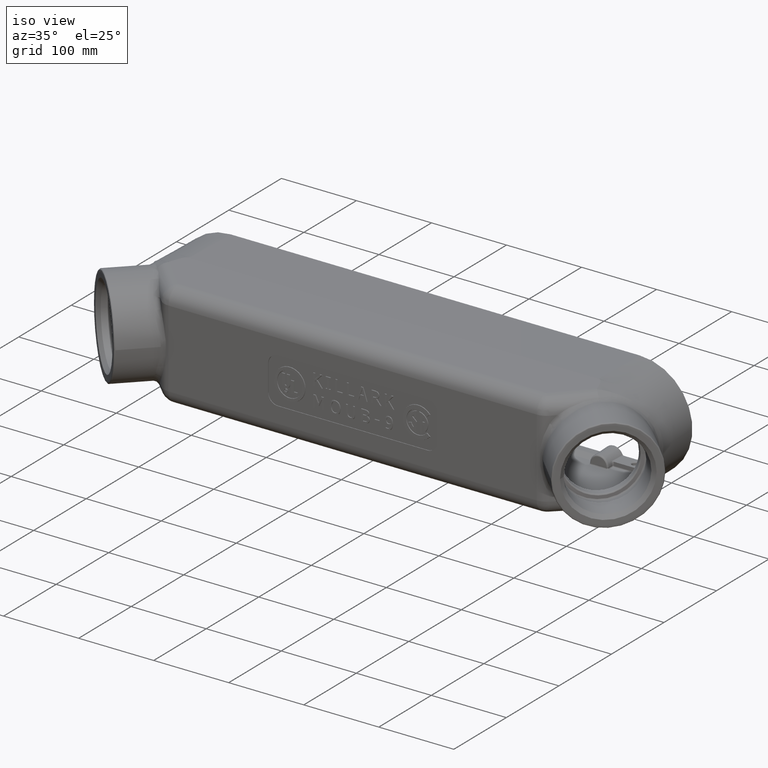
[diagram: clean part render]
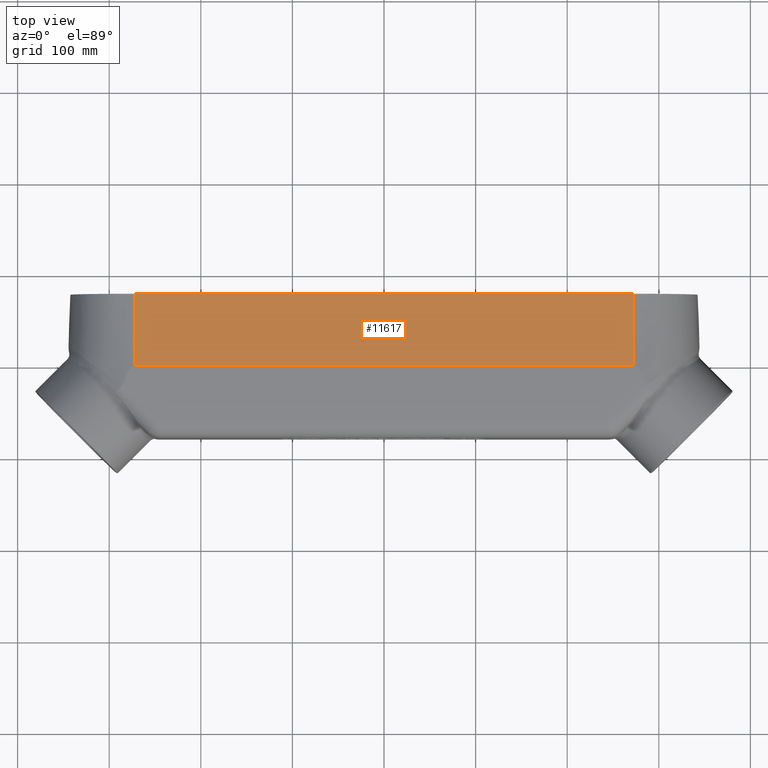
[diagram: tour spotlight — one face highlighted and labeled with its STEP entity id]
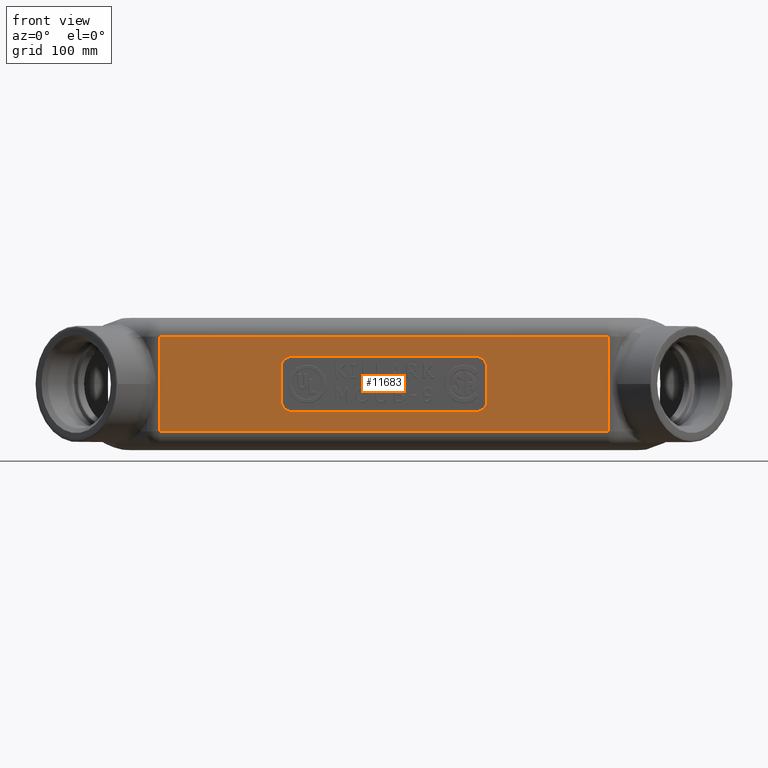
[diagram: tour spotlight — one face highlighted and labeled with its STEP entity id]
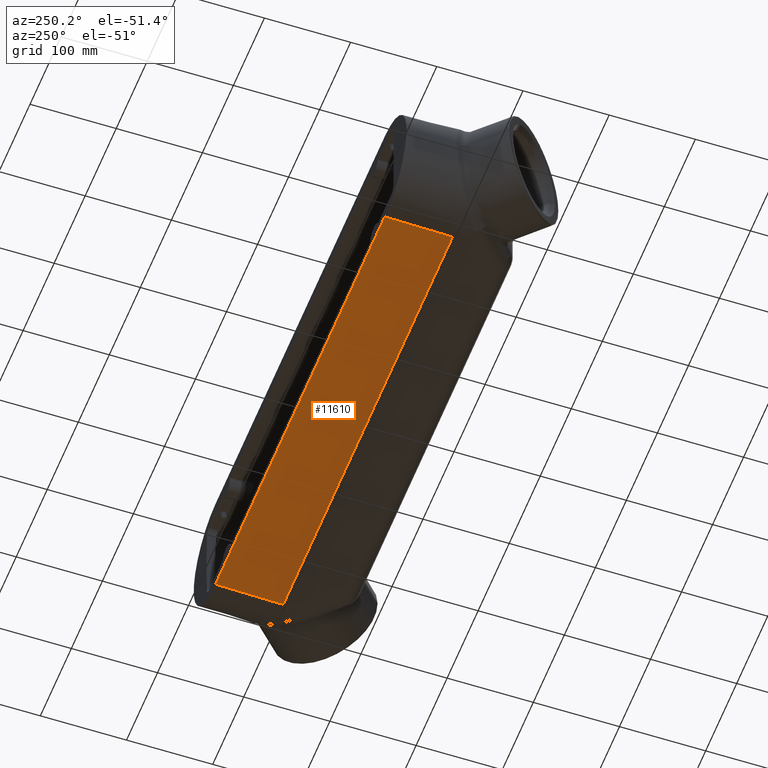
[diagram: tour spotlight — one face highlighted and labeled with its STEP entity id]
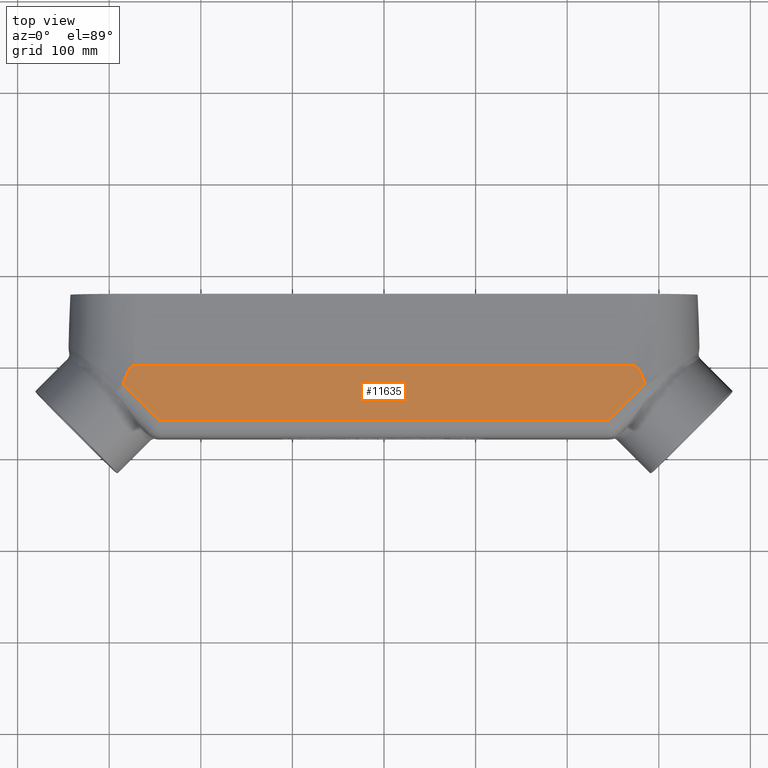
[diagram: tour spotlight — one face highlighted and labeled with its STEP entity id]
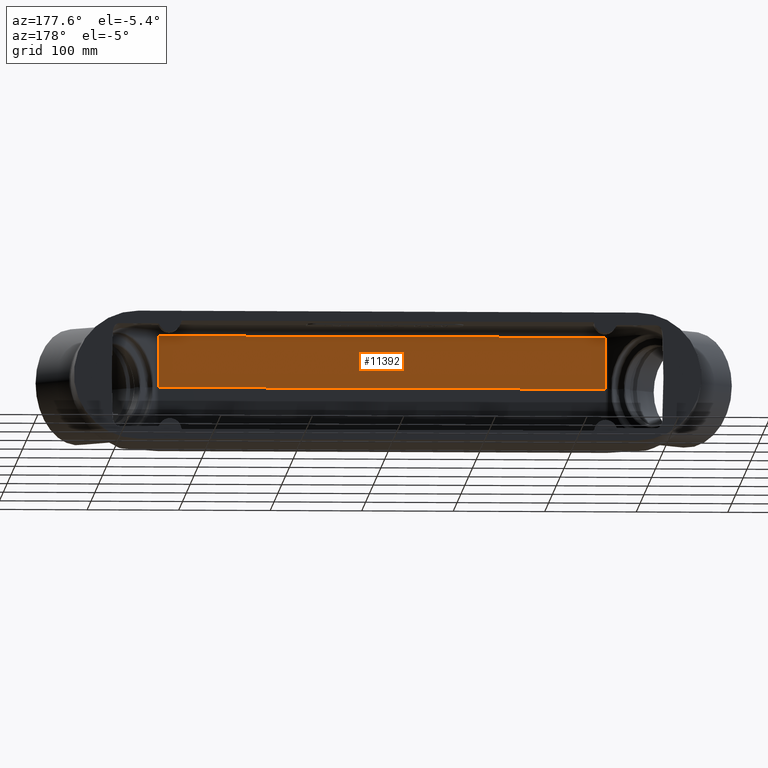
[diagram: tour spotlight — one face highlighted and labeled with its STEP entity id]
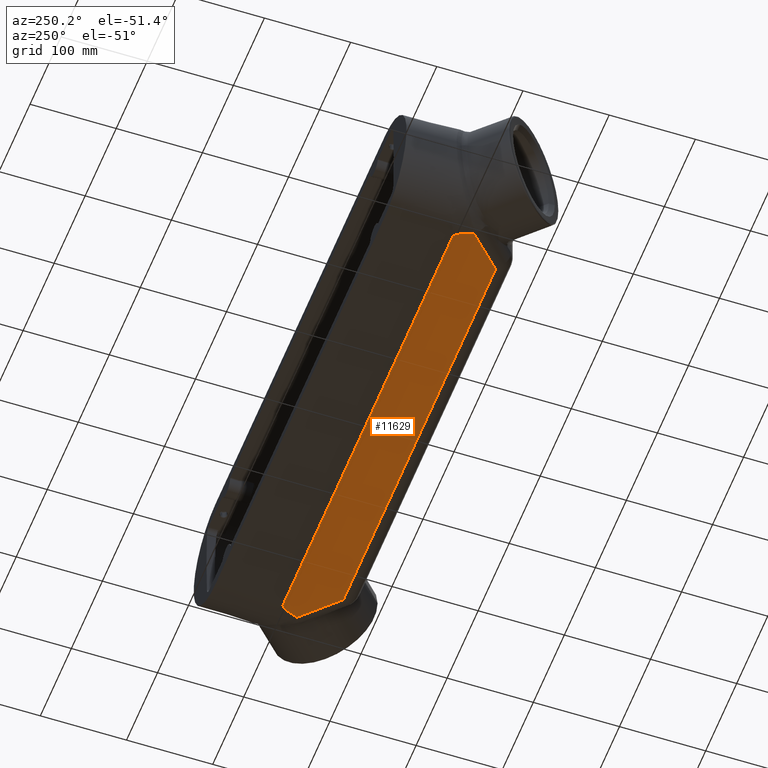
[diagram: tour spotlight — one face highlighted and labeled with its STEP entity id]
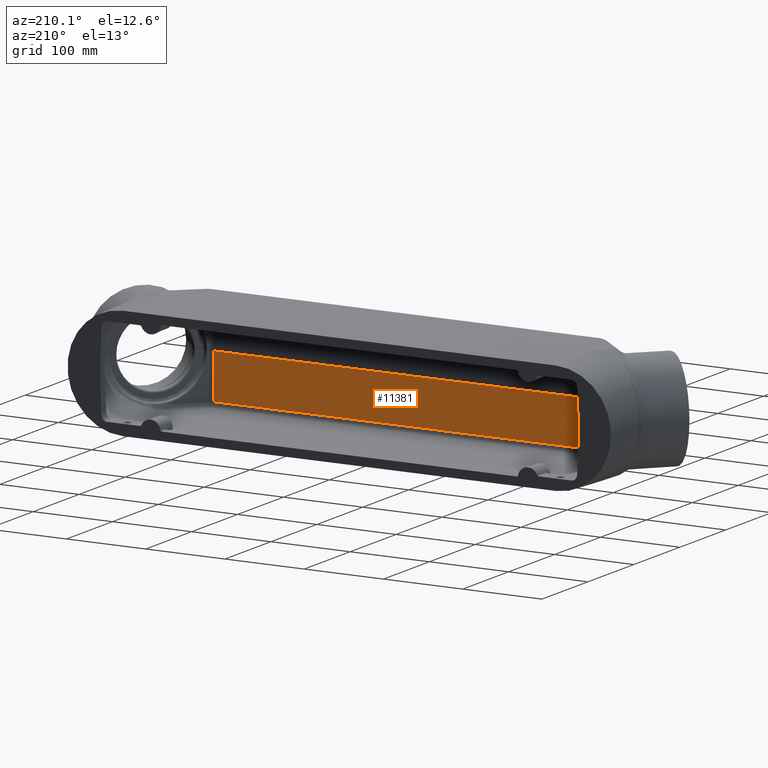
[diagram: tour spotlight — one face highlighted and labeled with its STEP entity id]
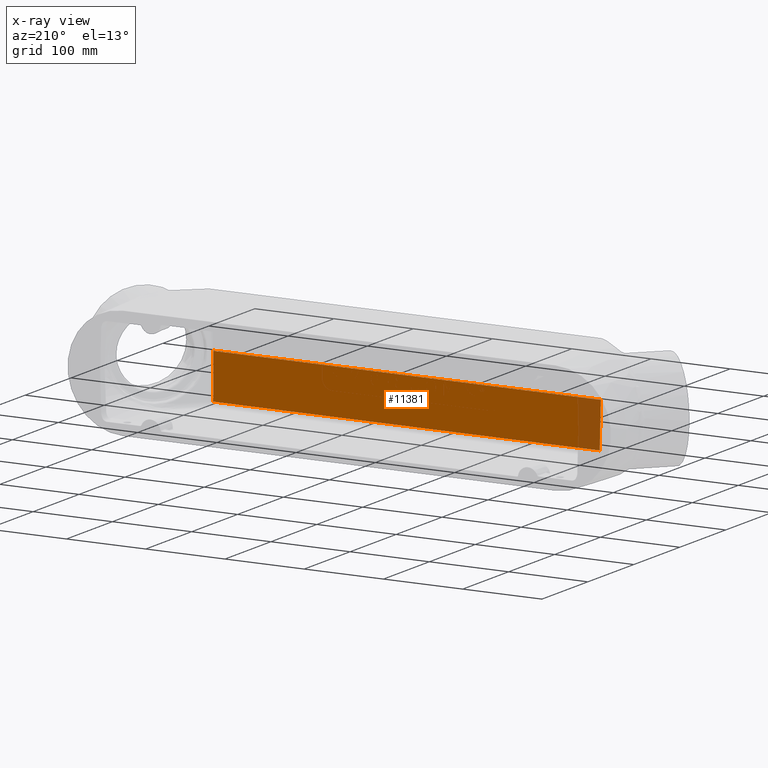
[diagram: x-ray of the same camera — body ghosted, this tour face saturated]
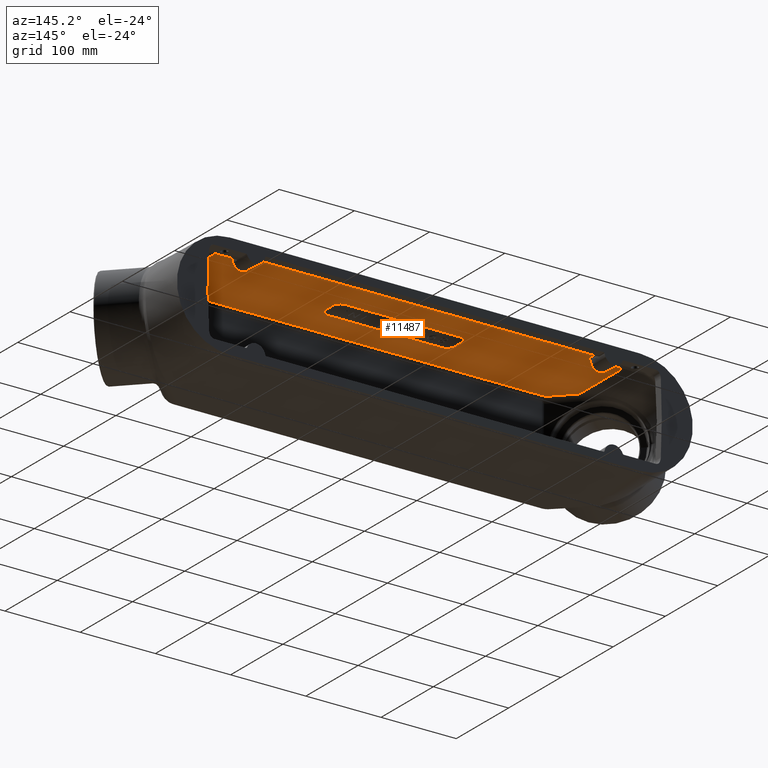
[diagram: tour spotlight — one face highlighted and labeled with its STEP entity id]
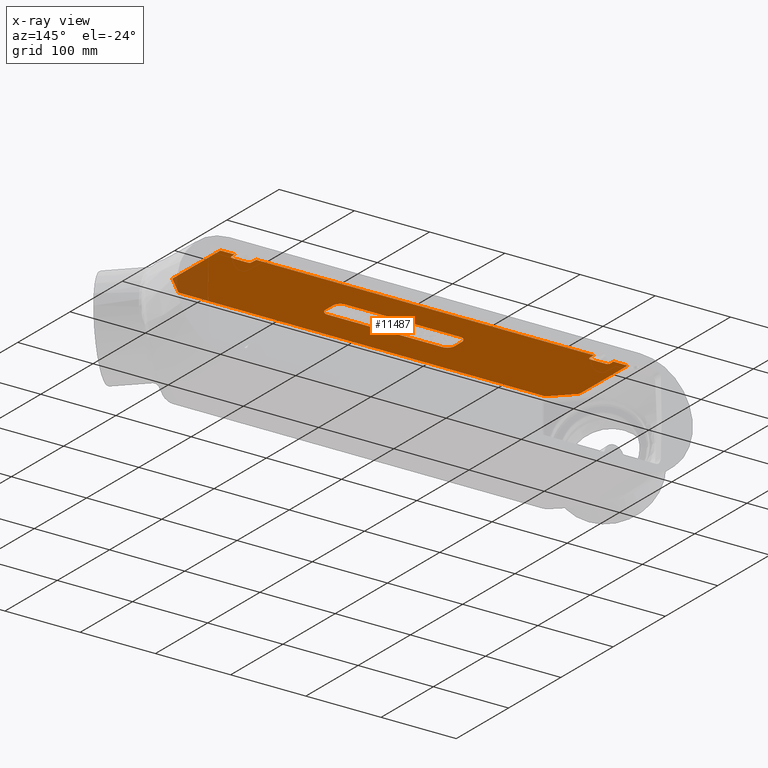
[diagram: x-ray of the same camera — body ghosted, this tour face saturated]
A machine part: a face-by-face anatomy tour. The part has 680 B-rep faces; the first image is the clean iso view, then the 8 largest visible faces are spotlighted one at a time (largest first), each with its STEP entity span.

Face 1 — top view, entity #11617. In plain terms, the highlighted planar face has unit normal (0, 0.0262, 0.9997).
Definition (entity closure, byte-faithful):
#563=PLANE('',#12442);
#1307=FACE_OUTER_BOUND('',#2009,.T.);
#2009=EDGE_LOOP('',(#9603,#9604,#9605,#9606));
#2642=LINE('',#26276,#3452);
#2680=LINE('',#27220,#3490);
#2681=LINE('',#27223,#3491);
#2682=LINE('',#27224,#3492);
#3452=VECTOR('',#14050,0.393700787401575);
#3490=VECTOR('',#14178,0.393835745075145);
#3491=VECTOR('',#14181,0.393835745075145);
#3492=VECTOR('',#14182,0.393700787401575);
#5152=VERTEX_POINT('',#26272);
#5154=VERTEX_POINT('',#26275);
#5208=VERTEX_POINT('',#27216);
#5209=VERTEX_POINT('',#27222);
#6665=EDGE_CURVE('',#5152,#5154,#2642,.F.);
#6754=EDGE_CURVE('',#5208,#5152,#2680,.T.);
#6755=EDGE_CURVE('',#5154,#5209,#2681,.T.);
#6756=EDGE_CURVE('',#5208,#5209,#2682,.T.);
#9603=ORIENTED_EDGE('',*,*,#6755,.F.);
#9604=ORIENTED_EDGE('',*,*,#6665,.F.);
#9605=ORIENTED_EDGE('',*,*,#6754,.F.);
#9606=ORIENTED_EDGE('',*,*,#6756,.T.);
#11617=ADVANCED_FACE('',(#1307),#563,.T.);
#12442=AXIS2_PLACEMENT_3D('',#27221,#14179,#14180);
#14050=DIRECTION('',(-1.,0.,1.2950983081075E-16));
#14178=DIRECTION('',(-2.56833467252923E-16,0.999657324975557,-0.0261769483078731));
#14179=DIRECTION('center_axis',(1.29465451026312E-16,0.0261769483078732,
0.999657324975557));
#14180=DIRECTION('ref_axis',(1.,0.,-1.2950983081075E-16));
#14181=DIRECTION('',(-2.15334863356314E-16,-0.999657324975557,0.0261769483078731));
#14182=DIRECTION('',(1.,0.,-1.2950983081075E-16));
#26272=CARTESIAN_POINT('',(-10.7372626948547,3.09375,2.76273730514533));
#26275=CARTESIAN_POINT('',(10.7372626948547,3.09375,2.76273730514533));
#26276=CARTESIAN_POINT('',(-6.75,3.09375,2.76273730514533));
#27216=CARTESIAN_POINT('',(-10.7372626948547,0.,2.84375));
#27220=CARTESIAN_POINT('',(-10.7372626948547,-0.72261501643065,2.86267234014497));
#27221=CARTESIAN_POINT('Origin',(-13.5,-3.09268984914313,2.92473493382748));
#27222=CARTESIAN_POINT('',(10.7372626948547,0.,2.84375));
#27223=CARTESIAN_POINT('',(10.7372626948547,-0.72261501643065,2.86267234014497));
#27224=CARTESIAN_POINT('',(-6.75,0.,2.84375));

Face 2 — front view, entity #11683. In plain terms, the highlighted planar face has unit normal (0, 1, 0).
Definition (entity closure, byte-faithful):
#362=CIRCLE('',#12506,0.5);
#363=CIRCLE('',#12507,0.5);
#364=CIRCLE('',#12508,0.499999999999999);
#365=CIRCLE('',#12509,0.5);
#419=FACE_BOUND('',#2084,.T.);
#597=PLANE('',#12505);
#1373=FACE_OUTER_BOUND('',#2083,.T.);
#2083=EDGE_LOOP('',(#9993,#9994,#9995,#9996));
#2084=EDGE_LOOP('',(#9997,#9998,#9999,#10000,#10001,#10002,#10003,#10004));
#2724=LINE('',#28385,#3534);
#2725=LINE('',#28387,#3535);
#2726=LINE('',#28389,#3536);
#2727=LINE('',#28391,#3537);
#2820=LINE('',#28881,#3630);
#2821=LINE('',#28885,#3631);
#2822=LINE('',#28889,#3632);
#2823=LINE('',#28893,#3633);
#3534=VECTOR('',#14304,0.393700787401575);
#3535=VECTOR('',#14307,0.393700787401575);
#3536=VECTOR('',#14310,0.393700787401575);
#3537=VECTOR('',#14313,0.393700787401575);
#3630=VECTOR('',#14446,0.393700787401575);
#3631=VECTOR('',#14449,0.393700787401575);
#3632=VECTOR('',#14452,0.393700787401575);
#3633=VECTOR('',#14455,0.393700787401575);
#5239=VERTEX_POINT('',#27499);
#5240=VERTEX_POINT('',#27505);
#5241=VERTEX_POINT('',#27583);
#5242=VERTEX_POINT('',#27587);
#5395=VERTEX_POINT('',#28879);
#5396=VERTEX_POINT('',#28880);
#5397=VERTEX_POINT('',#28882);
#5398=VERTEX_POINT('',#28884);
#5399=VERTEX_POINT('',#28886);
#5400=VERTEX_POINT('',#28888);
#5401=VERTEX_POINT('',#28890);
#5402=VERTEX_POINT('',#28892);
#6857=EDGE_CURVE('',#5241,#5239,#2724,.T.);
#6858=EDGE_CURVE('',#5239,#5240,#2725,.T.);
#6859=EDGE_CURVE('',#5240,#5242,#2726,.T.);
#6860=EDGE_CURVE('',#5242,#5241,#2727,.T.);
#6989=EDGE_CURVE('',#5395,#5396,#2820,.T.);
#6990=EDGE_CURVE('',#5396,#5397,#362,.T.);
#6991=EDGE_CURVE('',#5397,#5398,#2821,.T.);
#6992=EDGE_CURVE('',#5398,#5399,#363,.T.);
#6993=EDGE_CURVE('',#5399,#5400,#2822,.T.);
#6994=EDGE_CURVE('',#5400,#5401,#364,.T.);
#6995=EDGE_CURVE('',#5401,#5402,#2823,.T.);
#6996=EDGE_CURVE('',#5402,#5395,#365,.T.);
#9993=ORIENTED_EDGE('',*,*,#6860,.F.);
#9994=ORIENTED_EDGE('',*,*,#6859,.F.);
#9995=ORIENTED_EDGE('',*,*,#6858,.F.);
#9996=ORIENTED_EDGE('',*,*,#6857,.F.);
#9997=ORIENTED_EDGE('',*,*,#6989,.T.);
#9998=ORIENTED_EDGE('',*,*,#6990,.T.);
#9999=ORIENTED_EDGE('',*,*,#6991,.T.);
#10000=ORIENTED_EDGE('',*,*,#6992,.T.);
#10001=ORIENTED_EDGE('',*,*,#6993,.T.);
#10002=ORIENTED_EDGE('',*,*,#6994,.T.);
#10003=ORIENTED_EDGE('',*,*,#6995,.T.);
#10004=ORIENTED_EDGE('',*,*,#6996,.T.);
#11683=ADVANCED_FACE('',(#1373,#419),#597,.F.);
#12505=AXIS2_PLACEMENT_3D('',#28878,#14444,#14445);
#12506=AXIS2_PLACEMENT_3D('',#28883,#14447,#14448);
#12507=AXIS2_PLACEMENT_3D('',#28887,#14450,#14451);
#12508=AXIS2_PLACEMENT_3D('',#28891,#14453,#14454);
#12509=AXIS2_PLACEMENT_3D('',#28894,#14456,#14457);
#14304=DIRECTION('',(0.,0.,-1.));
#14307=DIRECTION('',(-1.,0.,2.3311769545935E-16));
#14310=DIRECTION('',(0.,0.,1.));
#14313=DIRECTION('',(1.,0.,-1.2950983081075E-16));
#14444=DIRECTION('center_axis',(0.,1.,0.));
#14445=DIRECTION('ref_axis',(0.,0.,1.));
#14446=DIRECTION('',(0.,0.,-1.));
#14447=DIRECTION('center_axis',(0.,1.,0.));
#14448=DIRECTION('ref_axis',(0.,0.,-1.));
#14449=DIRECTION('',(-1.,0.,-1.33474942927024E-16));
#14450=DIRECTION('center_axis',(0.,1.,0.));
#14451=DIRECTION('ref_axis',(-1.,0.,-1.74838271594513E-16));
#14452=DIRECTION('',(0.,0.,1.));
#14453=DIRECTION('center_axis',(0.,1.,0.));
#14454=DIRECTION('ref_axis',(0.,0.,1.));
#14455=DIRECTION('',(1.,0.,2.22458238211706E-17));
#14456=DIRECTION('center_axis',(0.,1.,0.));
#14457=DIRECTION('ref_axis',(1.,0.,0.));
#27499=CARTESIAN_POINT('',(9.65808982822018,-3.09375,-2.03211965195407));
#27505=CARTESIAN_POINT('',(-9.65808982822018,-3.09375,-2.03211965195406));
#27583=CARTESIAN_POINT('',(9.65808982822018,-3.09375,2.03211965195407));
#27587=CARTESIAN_POINT('',(-9.65808982822018,-3.09375,2.03211965195407));
#28385=CARTESIAN_POINT('',(9.65808982822018,-3.09375,-3.49676543189026E-16));
#28387=CARTESIAN_POINT('',(6.75,-3.09375,-2.03211965195407));
#28389=CARTESIAN_POINT('',(-9.65808982822018,-3.09375,-3.49676543189026E-16));
#28391=CARTESIAN_POINT('',(-6.75,-3.09375,2.03211965195407));
#28878=CARTESIAN_POINT('Origin',(1.3987061727561E-15,-3.09375,-6.99353086378051E-16));
#28879=CARTESIAN_POINT('',(4.4296875,-3.09375,0.6953125));
#28880=CARTESIAN_POINT('',(4.4296875,-3.09375,-0.6953125));
#28881=CARTESIAN_POINT('',(4.4296875,-3.09375,-0.34765625));
#28882=CARTESIAN_POINT('',(3.9296875,-3.09375,-1.1953125));
#28883=CARTESIAN_POINT('Origin',(3.9296875,-3.09375,-0.6953125));
#28884=CARTESIAN_POINT('',(-3.9296875,-3.09375,-1.1953125));
#28885=CARTESIAN_POINT('',(-1.96484375,-3.09375,-1.1953125));
#28886=CARTESIAN_POINT('',(-4.4296875,-3.09375,-0.695312500000001));
#28887=CARTESIAN_POINT('Origin',(-3.9296875,-3.09375,-0.695312500000001));
#28888=CARTESIAN_POINT('',(-4.4296875,-3.09375,0.6953125));
#28889=CARTESIAN_POINT('',(-4.4296875,-3.09375,0.34765625));
#28890=CARTESIAN_POINT('',(-3.9296875,-3.09375,1.1953125));
#28891=CARTESIAN_POINT('Origin',(-3.9296875,-3.09375,0.6953125));
#28892=CARTESIAN_POINT('',(3.9296875,-3.09375,1.1953125));
#28893=CARTESIAN_POINT('',(1.96484375,-3.09375,1.1953125));
#28894=CARTESIAN_POINT('Origin',(3.9296875,-3.09375,0.6953125));

Face 3 — auxiliary view, entity #11610. In plain terms, the highlighted planar face has unit normal (-0, 0.0262, -0.9997).
Definition (entity closure, byte-faithful):
#562=PLANE('',#12427);
#1300=FACE_OUTER_BOUND('',#2002,.T.);
#2002=EDGE_LOOP('',(#9555,#9556,#9557,#9558));
#2643=LINE('',#26279,#3453);
#2672=LINE('',#27146,#3482);
#2673=LINE('',#27148,#3483);
#2674=LINE('',#27149,#3484);
#3453=VECTOR('',#14053,0.393700787401575);
#3482=VECTOR('',#14142,0.393835745075145);
#3483=VECTOR('',#14143,0.393835745075145);
#3484=VECTOR('',#14144,0.393700787401575);
#5153=VERTEX_POINT('',#26273);
#5155=VERTEX_POINT('',#26277);
#5194=VERTEX_POINT('',#27145);
#5195=VERTEX_POINT('',#27147);
#6667=EDGE_CURVE('',#5155,#5153,#2643,.F.);
#6731=EDGE_CURVE('',#5153,#5194,#2672,.T.);
#6732=EDGE_CURVE('',#5195,#5155,#2673,.T.);
#6733=EDGE_CURVE('',#5195,#5194,#2674,.T.);
#9555=ORIENTED_EDGE('',*,*,#6731,.F.);
#9556=ORIENTED_EDGE('',*,*,#6667,.F.);
#9557=ORIENTED_EDGE('',*,*,#6732,.F.);
#9558=ORIENTED_EDGE('',*,*,#6733,.T.);
#11610=ADVANCED_FACE('',(#1300),#562,.T.);
#12427=AXIS2_PLACEMENT_3D('',#27144,#14140,#14141);
#14053=DIRECTION('',(1.,0.,-2.3311769545935E-16));
#14140=DIRECTION('center_axis',(-2.33037811847361E-16,0.0261769483078732,
-0.999657324975557));
#14141=DIRECTION('ref_axis',(-1.,0.,2.3311769545935E-16));
#14142=DIRECTION('',(2.47340985242739E-16,-0.999657324975557,-0.0261769483078731));
#14143=DIRECTION('',(2.24827345366498E-16,0.999657324975557,0.0261769483078731));
#14144=DIRECTION('',(-1.,0.,2.3311769545935E-16));
#26273=CARTESIAN_POINT('',(-10.7372626948547,3.09375,-2.76273730514532));
#26277=CARTESIAN_POINT('',(10.7372626948547,3.09375,-2.76273730514533));
#26279=CARTESIAN_POINT('',(6.75,3.09375,-2.76273730514533));
#27144=CARTESIAN_POINT('Origin',(13.5,-3.09268984914313,-2.92473493382748));
#27145=CARTESIAN_POINT('',(-10.7372626948547,0.,-2.84375));
#27146=CARTESIAN_POINT('',(-10.7372626948547,-0.72261501643065,-2.86267234014497));
#27147=CARTESIAN_POINT('',(10.7372626948547,0.,-2.84375));
#27148=CARTESIAN_POINT('',(10.7372626948547,-0.72261501643065,-2.86267234014497));
#27149=CARTESIAN_POINT('',(6.75,0.,-2.84375));

Face 4 — top view, entity #11635. In plain terms, the highlighted planar face has unit normal (0, -0.0262, 0.9997).
Definition (entity closure, byte-faithful):
#17=(
BOUNDED_CURVE()
B_SPLINE_CURVE(2,(#27217,#27218,#27219),.UNSPECIFIED.,.F.,.F.)
B_SPLINE_CURVE_WITH_KNOTS((3,3),(4.1035610434725,8.33299702855162),
 .UNSPECIFIED.)
CURVE()
GEOMETRIC_REPRESENTATION_ITEM()
RATIONAL_B_SPLINE_CURVE((1.,1.,1.))
REPRESENTATION_ITEM('')
);
#19=(
BOUNDED_CURVE()
B_SPLINE_CURVE(2,(#27230,#27231,#27232),.UNSPECIFIED.,.F.,.F.)
B_SPLINE_CURVE_WITH_KNOTS((3,3),(8.3329970285516,12.5624330136307),
 .UNSPECIFIED.)
CURVE()
GEOMETRIC_REPRESENTATION_ITEM()
RATIONAL_B_SPLINE_CURVE((1.,1.,1.))
REPRESENTATION_ITEM('')
);
#574=PLANE('',#12465);
#1325=FACE_OUTER_BOUND('',#2030,.T.);
#2030=EDGE_LOOP('',(#9704,#9705,#9706,#9707,#9708,#9709));
#2682=LINE('',#27224,#3492);
#2683=LINE('',#27241,#3493);
#2686=LINE('',#27250,#3496);
#2698=LINE('',#27581,#3508);
#3492=VECTOR('',#14182,0.393700787401575);
#3493=VECTOR('',#14187,0.393700787401575);
#3496=VECTOR('',#14196,0.393700787401575);
#3508=VECTOR('',#14244,0.393700787401575);
#5207=VERTEX_POINT('',#27209);
#5208=VERTEX_POINT('',#27216);
#5209=VERTEX_POINT('',#27222);
#5210=VERTEX_POINT('',#27229);
#5211=VERTEX_POINT('',#27240);
#5214=VERTEX_POINT('',#27248);
#6753=EDGE_CURVE('',#5207,#5208,#17,.T.);
#6756=EDGE_CURVE('',#5208,#5209,#2682,.T.);
#6758=EDGE_CURVE('',#5209,#5210,#19,.T.);
#6760=EDGE_CURVE('',#5210,#5211,#2683,.T.);
#6765=EDGE_CURVE('',#5214,#5207,#2686,.T.);
#6801=EDGE_CURVE('',#5211,#5214,#2698,.T.);
#9704=ORIENTED_EDGE('',*,*,#6801,.F.);
#9705=ORIENTED_EDGE('',*,*,#6760,.F.);
#9706=ORIENTED_EDGE('',*,*,#6758,.F.);
#9707=ORIENTED_EDGE('',*,*,#6756,.F.);
#9708=ORIENTED_EDGE('',*,*,#6753,.F.);
#9709=ORIENTED_EDGE('',*,*,#6765,.F.);
#11635=ADVANCED_FACE('',(#1325),#574,.T.);
#12465=AXIS2_PLACEMENT_3D('',#27580,#14242,#14243);
#14182=DIRECTION('',(1.,0.,-1.2950983081075E-16));
#14187=DIRECTION('',(-0.706985596127133,-0.706985596127133,-0.0185130693707299));
#14196=DIRECTION('',(-0.706985596127133,0.706985596127133,0.0185130693707301));
#14242=DIRECTION('center_axis',(1.29465451026312E-16,-0.0261769483078732,
0.999657324975557));
#14243=DIRECTION('ref_axis',(1.,0.,-1.2950983081075E-16));
#14244=DIRECTION('',(-1.,0.,1.2950983081075E-16));
#27209=CARTESIAN_POINT('',(-11.2244920780458,-0.796980461405262,2.82288033214547));
#27216=CARTESIAN_POINT('',(-10.7372626948547,0.,2.84375));
#27217=CARTESIAN_POINT('Ctrl Pts',(-11.2244920780458,-0.796980461405261,
2.82288033214547));
#27218=CARTESIAN_POINT('Ctrl Pts',(-10.9808773864506,-4.06988528617707E-12,
2.84374999999989));
#27219=CARTESIAN_POINT('Ctrl Pts',(-10.7372626948547,-8.04256049334759E-15,
2.84375));
#27222=CARTESIAN_POINT('',(10.7372626948547,0.,2.84375));
#27224=CARTESIAN_POINT('',(-6.75,0.,2.84375));
#27229=CARTESIAN_POINT('',(11.2244920780458,-0.796980461405265,2.82288033214547));
#27230=CARTESIAN_POINT('Ctrl Pts',(10.7372626948547,-1.48612530855336E-14,
2.84375));
#27231=CARTESIAN_POINT('Ctrl Pts',(10.9808773864505,-4.07565494913969E-12,
2.84374999999989));
#27232=CARTESIAN_POINT('Ctrl Pts',(11.2244920780458,-0.796980461405264,
2.82288033214547));
#27240=CARTESIAN_POINT('',(9.65808982822018,-2.3633827112309,2.78186264568573));
#27241=CARTESIAN_POINT('',(5.33008623766188,-6.69138630178921,2.66852988311221));
#27248=CARTESIAN_POINT('',(-9.65808982822018,-2.3633827112309,2.78186264568574));
#27250=CARTESIAN_POINT('',(-10.3127529241889,-1.70871961526219,2.79900560217101));
#27580=CARTESIAN_POINT('Origin',(-13.5,-3.09268984914313,2.76276506617252));
#27581=CARTESIAN_POINT('',(-6.75,-2.3633827112309,2.78186264568574));

Face 5 — auxiliary view, entity #11392. In plain terms, the highlighted planar face has unit normal (0, -0.9997, 0.0262).
Definition (entity closure, byte-faithful):
#499=PLANE('',#12078);
#1082=FACE_OUTER_BOUND('',#1766,.T.);
#1766=EDGE_LOOP('',(#8321,#8322,#8323,#8324));
#2347=LINE('',#18654,#3157);
#2349=LINE('',#18660,#3159);
#2461=LINE('',#22174,#3271);
#2467=LINE('',#22324,#3277);
#3157=VECTOR('',#12937,0.393700787401575);
#3159=VECTOR('',#12943,0.393700787401575);
#3271=VECTOR('',#13191,0.393700787401575);
#3277=VECTOR('',#13239,0.393700787401575);
#4686=VERTEX_POINT('',#18423);
#4689=VERTEX_POINT('',#18430);
#4703=VERTEX_POINT('',#18653);
#4705=VERTEX_POINT('',#18659);
#5900=EDGE_CURVE('',#4703,#4689,#2347,.T.);
#5903=EDGE_CURVE('',#4686,#4705,#2349,.T.);
#6142=EDGE_CURVE('',#4686,#4689,#2461,.T.);
#6162=EDGE_CURVE('',#4705,#4703,#2467,.T.);
#8321=ORIENTED_EDGE('',*,*,#6142,.T.);
#8322=ORIENTED_EDGE('',*,*,#5900,.F.);
#8323=ORIENTED_EDGE('',*,*,#6162,.F.);
#8324=ORIENTED_EDGE('',*,*,#5903,.F.);
#11392=ADVANCED_FACE('',(#1082),#499,.F.);
#12078=AXIS2_PLACEMENT_3D('',#22323,#13237,#13238);
#12937=DIRECTION('',(-0.0108422096845632,-0.0261754096665653,-0.999598566634598));
#12943=DIRECTION('',(-0.0108422096845631,0.0261754096665653,0.999598566634598));
#13191=DIRECTION('',(-1.,-1.21308546375587E-16,0.));
#13237=DIRECTION('center_axis',(1.21266976966492E-16,-0.999657324975557,
0.0261769483078732));
#13238=DIRECTION('ref_axis',(1.,1.21308546375587E-16,0.));
#13239=DIRECTION('',(-1.,-1.21308546375587E-16,0.));
#18423=CARTESIAN_POINT('',(9.62504919493509,-2.71875,0.));
#18430=CARTESIAN_POINT('',(-9.62504919493508,-2.71875,0.));
#18653=CARTESIAN_POINT('',(-9.60091239889158,-2.66047861963954,2.22529423707697));
#18654=CARTESIAN_POINT('',(-9.6247790425281,-2.71809779439515,0.0249067271943309));
#18659=CARTESIAN_POINT('',(9.60091239889158,-2.66047861963954,2.22529423707697));
#18660=CARTESIAN_POINT('',(9.62391773661017,-2.71601841796674,0.104314909293655));
#22174=CARTESIAN_POINT('',(-4.86428355018385,-2.71875,0.));
#22323=CARTESIAN_POINT('Origin',(-9.7285671003677,-2.71875,-1.09273919746571E-17));
#22324=CARTESIAN_POINT('',(-4.86428355018385,-2.66047861963954,2.22529423707697));

Face 6 — auxiliary view, entity #11629. In plain terms, the highlighted planar face has unit normal (-0, -0.0262, -0.9997).
Definition (entity closure, byte-faithful):
#16=(
BOUNDED_CURVE()
B_SPLINE_CURVE(2,(#27206,#27207,#27208),.UNSPECIFIED.,.F.,.F.)
B_SPLINE_CURVE_WITH_KNOTS((3,3),(8.33299702855203,12.5624330136316),
 .UNSPECIFIED.)
CURVE()
GEOMETRIC_REPRESENTATION_ITEM()
RATIONAL_B_SPLINE_CURVE((1.,1.,1.))
REPRESENTATION_ITEM('')
);
#18=(
BOUNDED_CURVE()
B_SPLINE_CURVE(2,(#27226,#27227,#27228),.UNSPECIFIED.,.F.,.F.)
B_SPLINE_CURVE_WITH_KNOTS((3,3),(4.1035610434725,8.33299702855152),
 .UNSPECIFIED.)
CURVE()
GEOMETRIC_REPRESENTATION_ITEM()
RATIONAL_B_SPLINE_CURVE((1.,1.,1.))
REPRESENTATION_ITEM('')
);
#571=PLANE('',#12456);
#1319=FACE_OUTER_BOUND('',#2024,.T.);
#2024=EDGE_LOOP('',(#9681,#9682,#9683,#9684,#9685,#9686));
#2674=LINE('',#27149,#3484);
#2676=LINE('',#27156,#3486);
#2677=LINE('',#27172,#3487);
#2695=LINE('',#27497,#3505);
#3484=VECTOR('',#14144,0.393700787401575);
#3486=VECTOR('',#14150,0.393700787401575);
#3487=VECTOR('',#14153,0.393700787401575);
#3505=VECTOR('',#14223,0.393700787401575);
#5194=VERTEX_POINT('',#27145);
#5195=VERTEX_POINT('',#27147);
#5197=VERTEX_POINT('',#27153);
#5198=VERTEX_POINT('',#27155);
#5199=VERTEX_POINT('',#27164);
#5200=VERTEX_POINT('',#27171);
#6733=EDGE_CURVE('',#5195,#5194,#2674,.T.);
#6736=EDGE_CURVE('',#5197,#5198,#2676,.T.);
#6739=EDGE_CURVE('',#5199,#5200,#2677,.T.);
#6751=EDGE_CURVE('',#5194,#5199,#16,.T.);
#6757=EDGE_CURVE('',#5198,#5195,#18,.T.);
#6793=EDGE_CURVE('',#5200,#5197,#2695,.T.);
#9681=ORIENTED_EDGE('',*,*,#6793,.F.);
#9682=ORIENTED_EDGE('',*,*,#6739,.F.);
#9683=ORIENTED_EDGE('',*,*,#6751,.F.);
#9684=ORIENTED_EDGE('',*,*,#6733,.F.);
#9685=ORIENTED_EDGE('',*,*,#6757,.F.);
#9686=ORIENTED_EDGE('',*,*,#6736,.F.);
#11629=ADVANCED_FACE('',(#1319),#571,.T.);
#12456=AXIS2_PLACEMENT_3D('',#27496,#14221,#14222);
#14144=DIRECTION('',(-1.,0.,2.3311769545935E-16));
#14150=DIRECTION('',(0.706985596127133,0.706985596127133,-0.0185130693707301));
#14153=DIRECTION('',(0.706985596127133,-0.706985596127133,0.0185130693707298));
#14221=DIRECTION('center_axis',(-2.33037811847361E-16,-0.0261769483078732,
-0.999657324975557));
#14222=DIRECTION('ref_axis',(-1.,0.,2.3311769545935E-16));
#14223=DIRECTION('',(1.,0.,-2.3311769545935E-16));
#27145=CARTESIAN_POINT('',(-10.7372626948547,0.,-2.84375));
#27147=CARTESIAN_POINT('',(10.7372626948547,0.,-2.84375));
#27149=CARTESIAN_POINT('',(6.75,0.,-2.84375));
#27153=CARTESIAN_POINT('',(9.65808982822018,-2.3633827112309,-2.78186264568574));
#27155=CARTESIAN_POINT('',(11.2244920780458,-0.796980461405271,-2.82288033214547));
#27156=CARTESIAN_POINT('',(12.0777727849336,0.0563002454824933,-2.84522427381253));
#27164=CARTESIAN_POINT('',(-11.2244920780459,-0.796980461405226,-2.82288033214546));
#27171=CARTESIAN_POINT('',(-9.65808982822018,-2.3633827112309,-2.78186264568573));
#27172=CARTESIAN_POINT('',(-3.5650663769172,-8.45640616253389,-2.6223112114707));
#27206=CARTESIAN_POINT('Ctrl Pts',(-10.7372626948547,1.52196715423023E-13,
-2.84375));
#27207=CARTESIAN_POINT('Ctrl Pts',(-10.9808773864506,-3.90833472322374E-12,
-2.84374999999989));
#27208=CARTESIAN_POINT('Ctrl Pts',(-11.2244920780459,-0.796980461405226,
-2.82288033214546));
#27226=CARTESIAN_POINT('Ctrl Pts',(11.2244920780458,-0.79698046140527,-2.82288033214547));
#27227=CARTESIAN_POINT('Ctrl Pts',(10.9808773864505,-4.10765035284148E-12,
-2.84374999999989));
#27228=CARTESIAN_POINT('Ctrl Pts',(10.7372626948547,-4.54579506145733E-14,
-2.84375));
#27496=CARTESIAN_POINT('Origin',(13.5,-3.09268984914313,-2.76276506617252));
#27497=CARTESIAN_POINT('',(6.75,-2.3633827112309,-2.78186264568574));

Face 7 — auxiliary view, entity #11381. An x-ray twin of the same camera follows (body ghosted, this face saturated) — the face is partly hidden behind the body. In plain terms, the highlighted planar face has unit normal (0, -0.9997, -0.0262).
Definition (entity closure, byte-faithful):
#492=PLANE('',#12057);
#1071=FACE_OUTER_BOUND('',#1755,.T.);
#1755=EDGE_LOOP('',(#8283,#8284,#8285,#8286));
#2343=LINE('',#18424,#3153);
#2345=LINE('',#18433,#3155);
#2461=LINE('',#22174,#3271);
#2462=LINE('',#22175,#3272);
#3153=VECTOR('',#12897,0.393700787401575);
#3155=VECTOR('',#12905,0.393700787401575);
#3271=VECTOR('',#13191,0.393700787401575);
#3272=VECTOR('',#13192,0.393700787401575);
#4685=VERTEX_POINT('',#18421);
#4686=VERTEX_POINT('',#18423);
#4689=VERTEX_POINT('',#18430);
#4690=VERTEX_POINT('',#18432);
#5877=EDGE_CURVE('',#4685,#4686,#2343,.T.);
#5881=EDGE_CURVE('',#4689,#4690,#2345,.T.);
#6142=EDGE_CURVE('',#4686,#4689,#2461,.T.);
#6143=EDGE_CURVE('',#4690,#4685,#2462,.T.);
#8283=ORIENTED_EDGE('',*,*,#5881,.F.);
#8284=ORIENTED_EDGE('',*,*,#6142,.F.);
#8285=ORIENTED_EDGE('',*,*,#5877,.F.);
#8286=ORIENTED_EDGE('',*,*,#6143,.F.);
#11381=ADVANCED_FACE('',(#1071),#492,.F.);
#12057=AXIS2_PLACEMENT_3D('',#22173,#13189,#13190);
#12897=DIRECTION('',(0.0108422096845631,-0.0261754096665653,0.999598566634598));
#12905=DIRECTION('',(0.0108422096845632,0.0261754096665653,-0.999598566634598));
#13189=DIRECTION('center_axis',(1.21266976966492E-16,-0.999657324975557,
-0.0261769483078732));
#13190=DIRECTION('ref_axis',(1.,1.21308546375587E-16,0.));
#13191=DIRECTION('',(-1.,-1.21308546375587E-16,0.));
#13192=DIRECTION('',(1.,1.21308546375587E-16,0.));
#18421=CARTESIAN_POINT('',(9.60091239889158,-2.66047861963954,-2.22529423707697));
#18423=CARTESIAN_POINT('',(9.62504919493509,-2.71875,0.));
#18424=CARTESIAN_POINT('',(9.62391773661017,-2.71601841796674,-0.104314909293655));
#18430=CARTESIAN_POINT('',(-9.62504919493508,-2.71875,0.));
#18432=CARTESIAN_POINT('',(-9.60091239889158,-2.66047861963954,-2.22529423707697));
#18433=CARTESIAN_POINT('',(-9.6247790425281,-2.71809779439515,-0.0249067271943309));
#22173=CARTESIAN_POINT('Origin',(-9.7285671003677,-2.71875,1.09273919746571E-17));
#22174=CARTESIAN_POINT('',(-4.86428355018385,-2.71875,0.));
#22175=CARTESIAN_POINT('',(-4.86428355018385,-2.66047861963954,-2.22529423707697));

Face 8 — auxiliary view, entity #11487. An x-ray twin of the same camera follows (body ghosted, this face saturated) — the face is partly hidden behind the body. In plain terms, the highlighted planar face has unit normal (0, 0, 1).
Definition (entity closure, byte-faithful):
#228=CIRCLE('',#12158,0.374999999999999);
#229=CIRCLE('',#12161,0.374999999999999);
#230=CIRCLE('',#12164,0.374999999999999);
#231=CIRCLE('',#12167,0.374999999999999);
#403=FACE_BOUND('',#1872,.T.);
#516=PLANE('',#12261);
#1177=FACE_OUTER_BOUND('',#1871,.T.);
#1871=EDGE_LOOP('',(#8869,#8870,#8871,#8872,#8873,#8874,#8875,#8876,#8877,
#8878,#8879,#8880,#8881,#8882,#8883,#8884,#8885,#8886));
#1872=EDGE_LOOP('',(#8887,#8888,#8889,#8890,#8891,#8892,#8893,#8894));
#2486=LINE('',#22974,#3296);
#2487=LINE('',#22976,#3297);
#2488=LINE('',#22978,#3298);
#2491=LINE('',#23187,#3301);
#2494=LINE('',#23195,#3304);
#2497=LINE('',#23203,#3307);
#2500=LINE('',#23210,#3310);
#2519=LINE('',#23438,#3329);
#2524=LINE('',#23456,#3334);
#2529=LINE('',#23478,#3339);
#2557=LINE('',#23814,#3367);
#2558=LINE('',#23817,#3368);
#2560=LINE('',#23828,#3370);
#2564=LINE('',#23938,#3374);
#2565=LINE('',#23940,#3375);
#2566=LINE('',#23941,#3376);
#3296=VECTOR('',#13398,0.393700787401575);
#3297=VECTOR('',#13401,0.393700787401575);
#3298=VECTOR('',#13404,0.393700787401575);
#3301=VECTOR('',#13425,0.393700787401575);
#3304=VECTOR('',#13434,0.393700787401575);
#3307=VECTOR('',#13443,0.393700787401575);
#3310=VECTOR('',#13452,0.393700787401575);
#3329=VECTOR('',#13513,0.393700787401575);
#3334=VECTOR('',#13532,0.393700787401575);
#3339=VECTOR('',#13555,0.393700787401575);
#3367=VECTOR('',#13669,0.393700787401575);
#3368=VECTOR('',#13674,0.393700787401575);
#3370=VECTOR('',#13688,0.393700787401575);
#3374=VECTOR('',#13702,0.393700787401575);
#3375=VECTOR('',#13703,0.393700787401575);
#3376=VECTOR('',#13704,0.393700787401575);
#4173=B_SPLINE_CURVE_WITH_KNOTS('',3,(#23008,#23009,#23010,#23011,#23012),
 .UNSPECIFIED.,.F.,.F.,(4,1,4),(-0.474939202106501,-0.203545372331361,-5.92785639963229E-15),
 .UNSPECIFIED.);
#4175=B_SPLINE_CURVE_WITH_KNOTS('',3,(#23061,#23062,#23063,#23064,#23065,
#23066,#23067,#23068),.UNSPECIFIED.,.F.,.F.,(4,1,1,1,1,4),(-2.11645393471841,
-1.81410337261578,-1.20940224841052,-0.604701124205259,-0.30235056210263,
0.),.UNSPECIFIED.);
#4177=B_SPLINE_CURVE_WITH_KNOTS('',3,(#23123,#23124,#23125,#23126,#23127,
#23128,#23129,#23130),.UNSPECIFIED.,.F.,.F.,(4,1,1,1,1,4),(-2.1164539347184,
-1.81410337261577,-1.20940224841052,-0.604701124205258,-0.302350562102629,
0.),.UNSPECIFIED.);
#4180=B_SPLINE_CURVE_WITH_KNOTS('',3,(#23174,#23175,#23176,#23177,#23178),
 .UNSPECIFIED.,.F.,.F.,(4,1,4),(0.,0.271393829679592,0.474939201939286),
 .UNSPECIFIED.);
#4182=B_SPLINE_CURVE_WITH_KNOTS('',3,(#23244,#23245,#23246,#23247,#23248),
 .UNSPECIFIED.,.F.,.F.,(4,1,4),(0.,0.271393829679592,0.474939201939286),
 .UNSPECIFIED.);
#4183=B_SPLINE_CURVE_WITH_KNOTS('',3,(#23277,#23278,#23279,#23280,#23281),
 .UNSPECIFIED.,.F.,.F.,(4,1,4),(-0.474939202106499,-0.203545372331357,0.),
 .UNSPECIFIED.);
#4834=VERTEX_POINT('',#22320);
#4835=VERTEX_POINT('',#22326);
#4862=VERTEX_POINT('',#22391);
#4865=VERTEX_POINT('',#22460);
#4896=VERTEX_POINT('',#22963);
#4898=VERTEX_POINT('',#22968);
#4901=VERTEX_POINT('',#23005);
#4902=VERTEX_POINT('',#23007);
#4904=VERTEX_POINT('',#23060);
#4907=VERTEX_POINT('',#23120);
#4908=VERTEX_POINT('',#23122);
#4911=VERTEX_POINT('',#23167);
#4912=VERTEX_POINT('',#23180);
#4913=VERTEX_POINT('',#23182);
#4914=VERTEX_POINT('',#23186);
#4915=VERTEX_POINT('',#23190);
#4916=VERTEX_POINT('',#23194);
#4917=VERTEX_POINT('',#23198);
#4918=VERTEX_POINT('',#23202);
#4919=VERTEX_POINT('',#23206);
#4921=VERTEX_POINT('',#23237);
#4923=VERTEX_POINT('',#23275);
#4946=VERTEX_POINT('',#23454);
#4995=VERTEX_POINT('',#23812);
#5005=VERTEX_POINT('',#23937);
#5006=VERTEX_POINT('',#23939);
#6247=EDGE_CURVE('',#4896,#4834,#2486,.T.);
#6248=EDGE_CURVE('',#4834,#4835,#2487,.T.);
#6249=EDGE_CURVE('',#4835,#4865,#2488,.T.);
#6251=EDGE_CURVE('',#4901,#4902,#4173,.T.);
#6254=EDGE_CURVE('',#4902,#4904,#4175,.T.);
#6258=EDGE_CURVE('',#4907,#4908,#4177,.T.);
#6263=EDGE_CURVE('',#4908,#4911,#4180,.T.);
#6265=EDGE_CURVE('',#4913,#4912,#228,.T.);
#6267=EDGE_CURVE('',#4914,#4913,#2491,.T.);
#6269=EDGE_CURVE('',#4915,#4914,#229,.T.);
#6271=EDGE_CURVE('',#4916,#4915,#2494,.T.);
#6273=EDGE_CURVE('',#4917,#4916,#230,.T.);
#6275=EDGE_CURVE('',#4918,#4917,#2497,.T.);
#6277=EDGE_CURVE('',#4919,#4918,#231,.T.);
#6279=EDGE_CURVE('',#4912,#4919,#2500,.T.);
#6282=EDGE_CURVE('',#4904,#4921,#4182,.T.);
#6284=EDGE_CURVE('',#4923,#4907,#4183,.T.);
#6317=EDGE_CURVE('',#4862,#4901,#2519,.T.);
#6326=EDGE_CURVE('',#4946,#4862,#2524,.T.);
#6337=EDGE_CURVE('',#4865,#4946,#2529,.T.);
#6405=EDGE_CURVE('',#4995,#4896,#2557,.T.);
#6407=EDGE_CURVE('',#4898,#4995,#2558,.T.);
#6413=EDGE_CURVE('',#4911,#4898,#2560,.T.);
#6425=EDGE_CURVE('',#5005,#4923,#2564,.T.);
#6426=EDGE_CURVE('',#5006,#5005,#2565,.T.);
#6427=EDGE_CURVE('',#4921,#5006,#2566,.T.);
#8869=ORIENTED_EDGE('',*,*,#6407,.F.);
#8870=ORIENTED_EDGE('',*,*,#6413,.F.);
#8871=ORIENTED_EDGE('',*,*,#6263,.F.);
#8872=ORIENTED_EDGE('',*,*,#6258,.F.);
#8873=ORIENTED_EDGE('',*,*,#6284,.F.);
#8874=ORIENTED_EDGE('',*,*,#6425,.F.);
#8875=ORIENTED_EDGE('',*,*,#6426,.F.);
#8876=ORIENTED_EDGE('',*,*,#6427,.F.);
#8877=ORIENTED_EDGE('',*,*,#6282,.F.);
#8878=ORIENTED_EDGE('',*,*,#6254,.F.);
#8879=ORIENTED_EDGE('',*,*,#6251,.F.);
#8880=ORIENTED_EDGE('',*,*,#6317,.F.);
#8881=ORIENTED_EDGE('',*,*,#6326,.F.);
#8882=ORIENTED_EDGE('',*,*,#6337,.F.);
#8883=ORIENTED_EDGE('',*,*,#6249,.F.);
#8884=ORIENTED_EDGE('',*,*,#6248,.F.);
#8885=ORIENTED_EDGE('',*,*,#6247,.F.);
#8886=ORIENTED_EDGE('',*,*,#6405,.F.);
#8887=ORIENTED_EDGE('',*,*,#6279,.T.);
#8888=ORIENTED_EDGE('',*,*,#6277,.T.);
#8889=ORIENTED_EDGE('',*,*,#6275,.T.);
#8890=ORIENTED_EDGE('',*,*,#6273,.T.);
#8891=ORIENTED_EDGE('',*,*,#6271,.T.);
#8892=ORIENTED_EDGE('',*,*,#6269,.T.);
#8893=ORIENTED_EDGE('',*,*,#6267,.T.);
#8894=ORIENTED_EDGE('',*,*,#6265,.T.);
#11487=ADVANCED_FACE('',(#1177,#403),#516,.F.);
#12158=AXIS2_PLACEMENT_3D('',#23183,#13420,#13421);
#12161=AXIS2_PLACEMENT_3D('',#23191,#13429,#13430);
#12164=AXIS2_PLACEMENT_3D('',#23199,#13438,#13439);
#12167=AXIS2_PLACEMENT_3D('',#23207,#13447,#13448);
#12261=AXIS2_PLACEMENT_3D('',#23936,#13700,#13701);
#13398=DIRECTION('',(0.707106781186548,-0.707106781186547,0.));
#13401=DIRECTION('',(1.,1.21308546375587E-16,0.));
#13404=DIRECTION('',(0.707106781186548,0.707106781186547,0.));
#13420=DIRECTION('center_axis',(0.,0.,1.));
#13421=DIRECTION('ref_axis',(-1.,0.,0.));
#13425=DIRECTION('',(-1.,0.,0.));
#13429=DIRECTION('center_axis',(0.,0.,1.));
#13430=DIRECTION('ref_axis',(0.,1.,0.));
#13434=DIRECTION('',(0.,1.,0.));
#13438=DIRECTION('center_axis',(0.,0.,1.));
#13439=DIRECTION('ref_axis',(1.,0.,0.));
#13443=DIRECTION('',(1.,0.,0.));
#13447=DIRECTION('center_axis',(0.,0.,1.));
#13448=DIRECTION('ref_axis',(0.,-1.,0.));
#13452=DIRECTION('',(0.,-1.,0.));
#13513=DIRECTION('',(-0.0261859215691869,-0.999657089962139,0.));
#13532=DIRECTION('',(-1.,2.7974123455122E-16,0.));
#13555=DIRECTION('',(0.,1.,0.));
#13669=DIRECTION('',(0.,-1.,0.));
#13674=DIRECTION('',(-1.,-2.7974123455122E-16,0.));
#13688=DIRECTION('',(-0.0261859215691869,0.999657089962139,0.));
#13700=DIRECTION('center_axis',(0.,0.,1.));
#13701=DIRECTION('ref_axis',(1.,0.,0.));
#13702=DIRECTION('',(-0.0261859215691869,-0.999657089962139,0.));
#13703=DIRECTION('',(-1.,0.,0.));
#13704=DIRECTION('',(-0.0261859215691869,0.999657089962139,0.));
#22320=CARTESIAN_POINT('',(-9.60091239889158,-2.41056428839565,2.46875));
#22326=CARTESIAN_POINT('',(9.60091239889158,-2.41056428839565,2.46875));
#22391=CARTESIAN_POINT('',(9.91712044160825,2.2763187151751,2.46875));
#22460=CARTESIAN_POINT('',(10.65625,-1.35522668728723,2.46875));
#22963=CARTESIAN_POINT('',(-10.65625,-1.35522668728723,2.46875));
#22968=CARTESIAN_POINT('',(-9.91712044160825,2.2763187151751,2.46875));
#22974=CARTESIAN_POINT('',(-9.50328406855169,-2.50819261873554,2.46875));
#22976=CARTESIAN_POINT('',(-4.86428355018385,-2.41056428839565,2.46875));
#22978=CARTESIAN_POINT('',(7.80506761873554,-4.20640906855169,2.46875));
#23005=CARTESIAN_POINT('',(9.91043616533286,2.02114403467733,2.46875));
#23007=CARTESIAN_POINT('',(9.79154205409274,1.89960409297054,2.46875));
#23008=CARTESIAN_POINT('Ctrl Pts',(9.91043616533286,2.02114403467733,2.46875));
#23009=CARTESIAN_POINT('Ctrl Pts',(9.90950352786031,1.98554025959771,2.46875));
#23010=CARTESIAN_POINT('Ctrl Pts',(9.87956408398375,1.92454107572707,2.46875));
#23011=CARTESIAN_POINT('Ctrl Pts',(9.8182230251916,1.90089104704735,2.46875));
#23012=CARTESIAN_POINT('Ctrl Pts',(9.79154205409274,1.89960409297054,2.46875));
#23060=CARTESIAN_POINT('',(8.95845794590725,1.89960409297054,2.46875));
#23061=CARTESIAN_POINT('Ctrl Pts',(9.79154205409274,1.89960409297054,2.46875));
#23062=CARTESIAN_POINT('Ctrl Pts',(9.75190958042466,1.897692424412,2.46875));
#23063=CARTESIAN_POINT('Ctrl Pts',(9.6329057631732,1.89455134358036,2.46875));
#23064=CARTESIAN_POINT('Ctrl Pts',(9.43451990825447,1.89268298145348,2.46875));
#23065=CARTESIAN_POINT('Ctrl Pts',(9.23611642796267,1.89322548830247,2.46875));
#23066=CARTESIAN_POINT('Ctrl Pts',(9.07742573410503,1.8955935244449,2.46875));
#23067=CARTESIAN_POINT('Ctrl Pts',(8.99809041957534,1.897692424412,2.46875));
#23068=CARTESIAN_POINT('Ctrl Pts',(8.95845794590725,1.89960409297054,2.46875));
#23120=CARTESIAN_POINT('',(-8.95845794590725,1.89960409297054,2.46875));
#23122=CARTESIAN_POINT('',(-9.79154205409274,1.89960409297054,2.46875));
#23123=CARTESIAN_POINT('Ctrl Pts',(-8.95845794590725,1.89960409297054,2.46875));
#23124=CARTESIAN_POINT('Ctrl Pts',(-8.99809041957534,1.897692424412,2.46875));
#23125=CARTESIAN_POINT('Ctrl Pts',(-9.11709423682681,1.89455134358036,2.46875));
#23126=CARTESIAN_POINT('Ctrl Pts',(-9.31548009174552,1.89268298145348,2.46875));
#23127=CARTESIAN_POINT('Ctrl Pts',(-9.51388357203732,1.89322548830247,2.46875));
#23128=CARTESIAN_POINT('Ctrl Pts',(-9.67257426589497,1.8955935244449,2.46875));
#23129=CARTESIAN_POINT('Ctrl Pts',(-9.75190958042466,1.897692424412,2.46875));
#23130=CARTESIAN_POINT('Ctrl Pts',(-9.79154205409274,1.89960409297054,2.46875));
#23167=CARTESIAN_POINT('',(-9.91043616533286,2.02114403467727,2.46875));
#23174=CARTESIAN_POINT('Ctrl Pts',(-9.79154205409274,1.89960409297054,2.46875));
#23175=CARTESIAN_POINT('Ctrl Pts',(-9.82711668221202,1.90132003173902,2.46875));
#23176=CARTESIAN_POINT('Ctrl Pts',(-9.88744224761664,1.93259454957298,2.46875));
#23177=CARTESIAN_POINT('Ctrl Pts',(-9.90973668722867,1.99444120337693,2.46875));
#23178=CARTESIAN_POINT('Ctrl Pts',(-9.91043616533286,2.02114403467724,2.46875));
#23180=CARTESIAN_POINT('',(-3.375,0.28125,2.46875));
#23182=CARTESIAN_POINT('',(-3.,0.65625,2.46875));
#23183=CARTESIAN_POINT('Origin',(-3.,0.28125,2.46875));
#23186=CARTESIAN_POINT('',(3.,0.65625,2.46875));
#23187=CARTESIAN_POINT('',(1.5,0.65625,2.46875));
#23190=CARTESIAN_POINT('',(3.375,0.28125,2.46875));
#23191=CARTESIAN_POINT('Origin',(3.,0.28125,2.46875));
#23194=CARTESIAN_POINT('',(3.375,-0.28125,2.46875));
#23195=CARTESIAN_POINT('',(3.375,-0.0468750000000011,2.46875));
#23198=CARTESIAN_POINT('',(3.,-0.65625,2.46875));
#23199=CARTESIAN_POINT('Origin',(3.,-0.28125,2.46875));
#23202=CARTESIAN_POINT('',(-3.,-0.65625,2.46875));
#23203=CARTESIAN_POINT('',(-1.5,-0.65625,2.46875));
#23206=CARTESIAN_POINT('',(-3.375,-0.28125,2.46875));
#23207=CARTESIAN_POINT('Origin',(-3.,-0.28125,2.46875));
#23210=CARTESIAN_POINT('',(-3.375,0.234374999999999,2.46875));
#23237=CARTESIAN_POINT('',(8.83956383466714,2.02114403467727,2.46875));
#23244=CARTESIAN_POINT('Ctrl Pts',(8.95845794590725,1.89960409297054,2.46875));
#23245=CARTESIAN_POINT('Ctrl Pts',(8.92288331778797,1.90132003173902,2.46875));
#23246=CARTESIAN_POINT('Ctrl Pts',(8.8625576020729,1.93259442688058,2.46875));
#23247=CARTESIAN_POINT('Ctrl Pts',(8.84026331277133,1.99444120337693,2.46875));
#23248=CARTESIAN_POINT('Ctrl Pts',(8.83956383466714,2.02114403467724,2.46875));
#23275=CARTESIAN_POINT('',(-8.83956383466714,2.02114403467733,2.46875));
#23277=CARTESIAN_POINT('Ctrl Pts',(-8.83956383466714,2.02114403467733,2.46875));
#23278=CARTESIAN_POINT('Ctrl Pts',(-8.84049647213969,1.98554025959771,2.46875));
#23279=CARTESIAN_POINT('Ctrl Pts',(-8.87043579004686,1.92454092815289,2.46875));
#23280=CARTESIAN_POINT('Ctrl Pts',(-8.9317769748084,1.90089104704735,2.46875));
#23281=CARTESIAN_POINT('Ctrl Pts',(-8.95845794590725,1.89960409297054,2.46875));
#23438=CARTESIAN_POINT('',(9.88478647157978,1.04195763683089,2.46875));
#23454=CARTESIAN_POINT('',(10.65625,2.2763187151751,2.46875));
#23456=CARTESIAN_POINT('',(4.6875,2.2763187151751,2.46875));
#23478=CARTESIAN_POINT('',(10.65625,0.432591449816143,2.46875));
#23812=CARTESIAN_POINT('',(-10.65625,2.2763187151751,2.46875));
#23814=CARTESIAN_POINT('',(-10.65625,1.640625,2.46875));
#23817=CARTESIAN_POINT('',(-4.6875,2.2763187151751,2.46875));
#23828=CARTESIAN_POINT('',(-9.88478647157978,1.04195763683089,2.46875));
#23936=CARTESIAN_POINT('Origin',(-2.79741234551221E-15,0.187499999999998,
2.46875));
#23937=CARTESIAN_POINT('',(-8.8311132023548,2.34375,2.46875));
#23938=CARTESIAN_POINT('',(-8.85632929648981,1.38111642544293,2.46875));
#23939=CARTESIAN_POINT('',(8.8311132023548,2.34375,2.46875));
#23940=CARTESIAN_POINT('',(-2.79741234551221E-15,2.34375,2.46875));
#23941=CARTESIAN_POINT('',(8.85632929648981,1.38111642544293,2.46875));